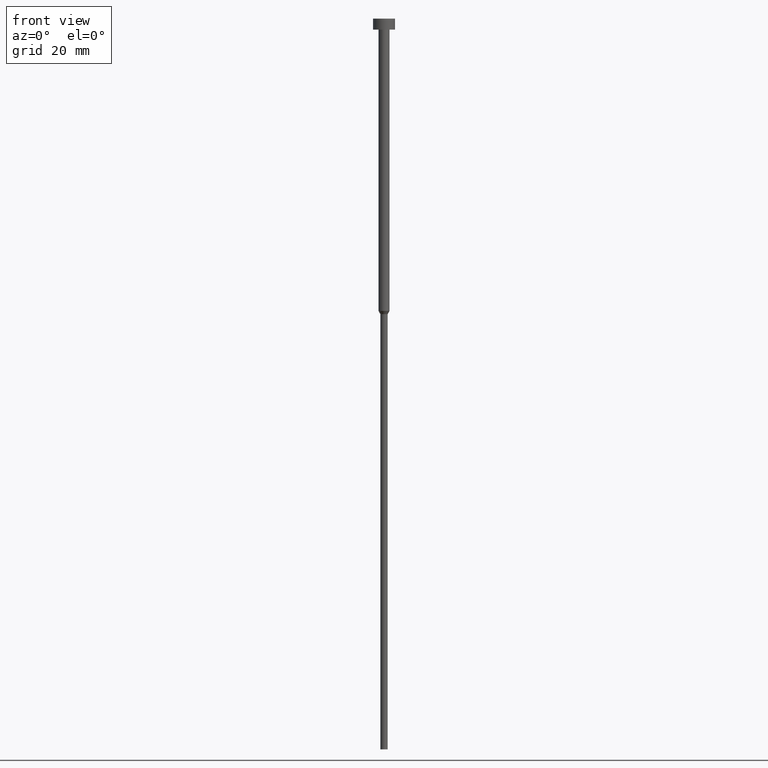
[diagram: clean part render]
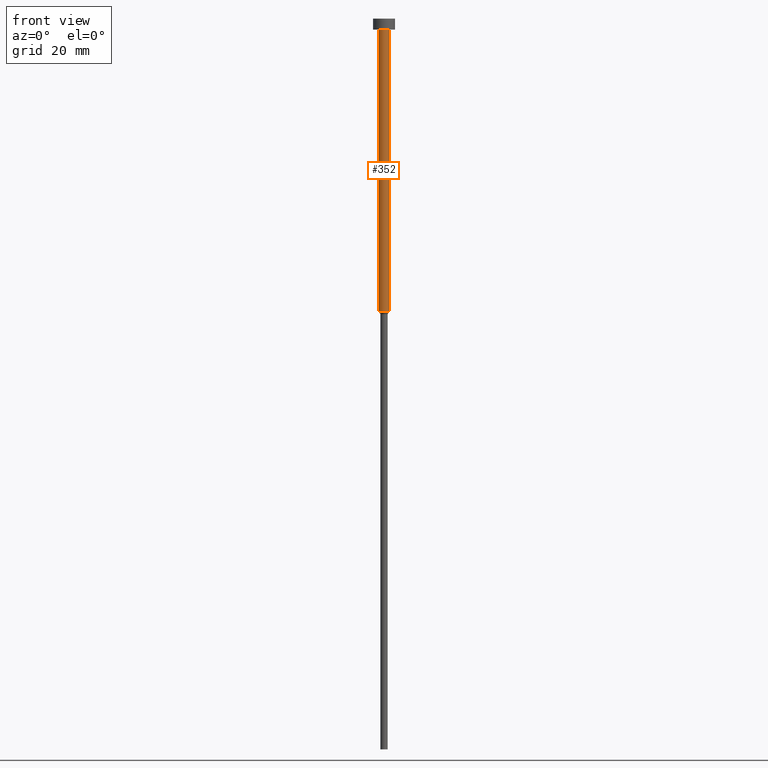
[diagram: same view with one face highlighted and labeled with its STEP entity id]
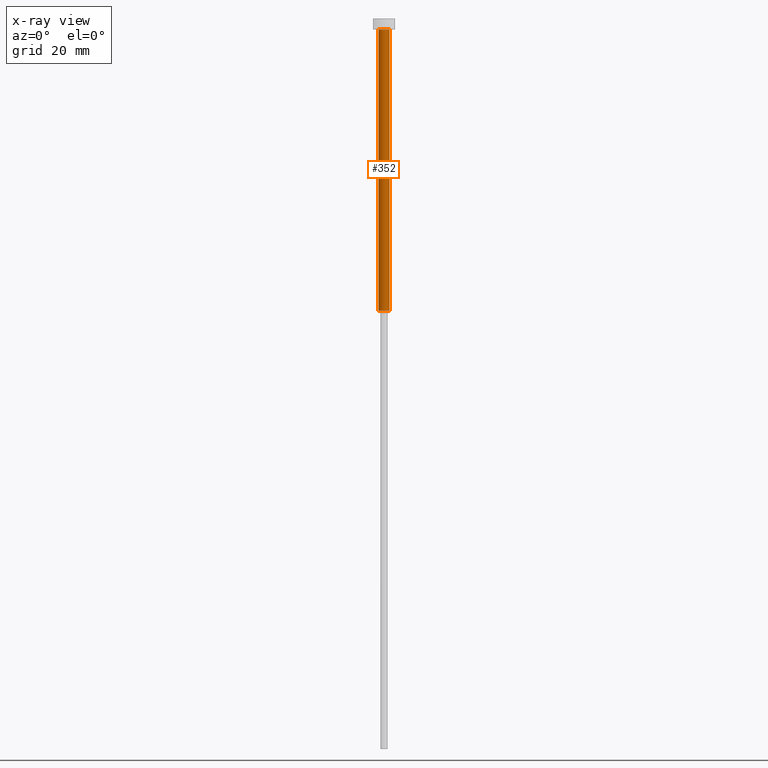
[diagram: x-ray of the same camera — body ghosted, the highlighted face saturated]
A machine part, front view. The second image highlights one B-rep face of the part: STEP entity #352.
The next image is the same camera in x-ray: the body ghosted, the highlighted face saturated — about 0% of this face is hidden behind the body in this view.
In plain terms, the highlighted cylindrical surface (edge-blend (fillet) strip) has radius 1.5 mm, axis along (-0, -0, 1).
Its self-contained STEP definition (entity closure, byte-faithful):
#1 = DIRECTION ( 'NONE',  ( -0.000000000000000000, -0.000000000000000000, 1.000000000000000000 ) ) ;
#4 = CIRCLE ( 'NONE', #157, 1.500000000000000000 ) ;
#6 = VERTEX_POINT ( 'NONE', #198 ) ;
#25 = ORIENTED_EDGE ( 'NONE', *, *, #201, .T. ) ;
#32 = CIRCLE ( 'NONE', #163, 1.500000000000000000 ) ;
#50 = DIRECTION ( 'NONE',  ( -0.000000000000000000, -0.000000000000000000, 1.000000000000000000 ) ) ;
#57 = VERTEX_POINT ( 'NONE', #274 ) ;
#83 = FACE_OUTER_BOUND ( 'NONE', #211, .T. ) ;
#91 = VECTOR ( 'NONE', #178, 1000.000000000000000 ) ;
#115 = CARTESIAN_POINT ( 'NONE',  ( 0.000000000000000000, 0.000000000000000000, 0.000000000000000000 ) ) ;
#152 = AXIS2_PLACEMENT_3D ( 'NONE', #115, #1, #337 ) ;
#157 = AXIS2_PLACEMENT_3D ( 'NONE', #346, #50, #195 ) ;
#163 = AXIS2_PLACEMENT_3D ( 'NONE', #169, #218, #277 ) ;
#169 = CARTESIAN_POINT ( 'NONE',  ( 0.000000000000000000, 0.000000000000000000, -80.00000000000000000 ) ) ;
#175 = EDGE_CURVE ( 'NONE', #57, #263, #4, .T. ) ;
#178 = DIRECTION ( 'NONE',  ( -0.000000000000000000, -0.000000000000000000, 1.000000000000000000 ) ) ;
#195 = DIRECTION ( 'NONE',  ( 1.000000000000000000, 0.000000000000000000, 0.000000000000000000 ) ) ;
#198 = CARTESIAN_POINT ( 'NONE',  ( 1.500000000000000000, 0.000000000000000000, -80.00000000000000000 ) ) ;
#201 = EDGE_CURVE ( 'NONE', #296, #6, #32, .T. ) ;
#211 = EDGE_LOOP ( 'NONE', ( #276, #25, #345, #260 ) ) ;
#218 = DIRECTION ( 'NONE',  ( -0.000000000000000000, -0.000000000000000000, 1.000000000000000000 ) ) ;
#223 = CARTESIAN_POINT ( 'NONE',  ( 1.500000000000000000, 0.000000000000000000, 0.000000000000000000 ) ) ;
#227 = EDGE_CURVE ( 'NONE', #6, #263, #280, .T. ) ;
#237 = LINE ( 'NONE', #315, #91 ) ;
#255 = DIRECTION ( 'NONE',  ( -0.000000000000000000, -0.000000000000000000, 1.000000000000000000 ) ) ;
#259 = VECTOR ( 'NONE', #255, 1000.000000000000000 ) ;
#260 = ORIENTED_EDGE ( 'NONE', *, *, #175, .F. ) ;
#263 = VERTEX_POINT ( 'NONE', #347 ) ;
#264 = CARTESIAN_POINT ( 'NONE',  ( -1.500000000000000000, 1.836970198721029934E-16, -80.00000000000000000 ) ) ;
#267 = CYLINDRICAL_SURFACE ( 'NONE', #152, 1.500000000000000000 ) ;
#274 = CARTESIAN_POINT ( 'NONE',  ( -1.500000000000000000, 1.836970198721029934E-16, -3.000000000000000888 ) ) ;
#276 = ORIENTED_EDGE ( 'NONE', *, *, #299, .F. ) ;
#277 = DIRECTION ( 'NONE',  ( 1.000000000000000000, 0.000000000000000000, 0.000000000000000000 ) ) ;
#280 = LINE ( 'NONE', #223, #259 ) ;
#296 = VERTEX_POINT ( 'NONE', #264 ) ;
#299 = EDGE_CURVE ( 'NONE', #296, #57, #237, .T. ) ;
#315 = CARTESIAN_POINT ( 'NONE',  ( -1.500000000000000000, 1.836970198721029934E-16, 0.000000000000000000 ) ) ;
#337 = DIRECTION ( 'NONE',  ( 1.000000000000000000, 0.000000000000000000, 0.000000000000000000 ) ) ;
#345 = ORIENTED_EDGE ( 'NONE', *, *, #227, .T. ) ;
#346 = CARTESIAN_POINT ( 'NONE',  ( 0.000000000000000000, 0.000000000000000000, -3.000000000000000888 ) ) ;
#347 = CARTESIAN_POINT ( 'NONE',  ( 1.500000000000000000, 0.000000000000000000, -3.000000000000000888 ) ) ;
#352 = ADVANCED_FACE ( 'NONE', ( #83 ), #267, .T. ) ;